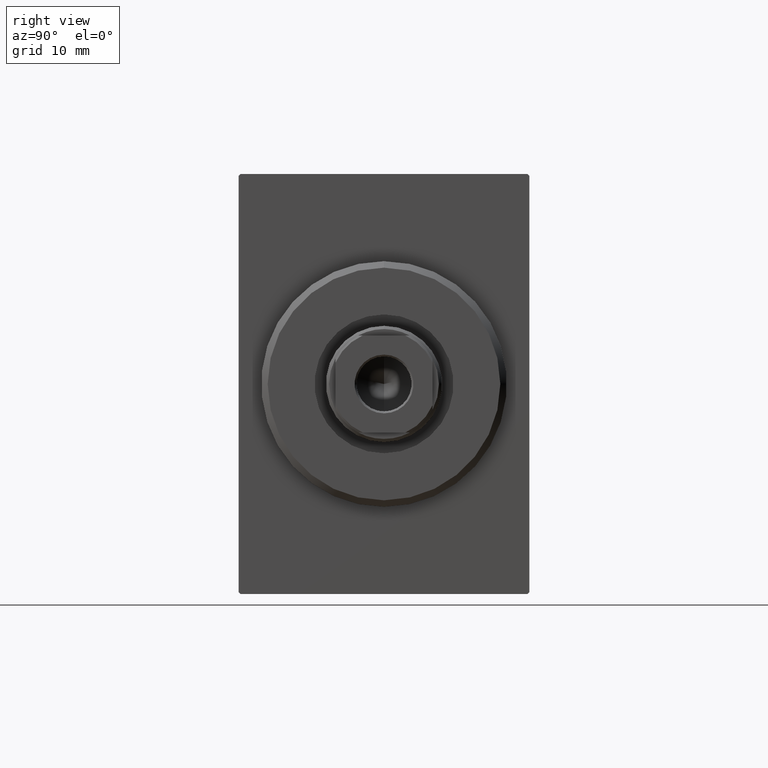
[diagram: clean part render]
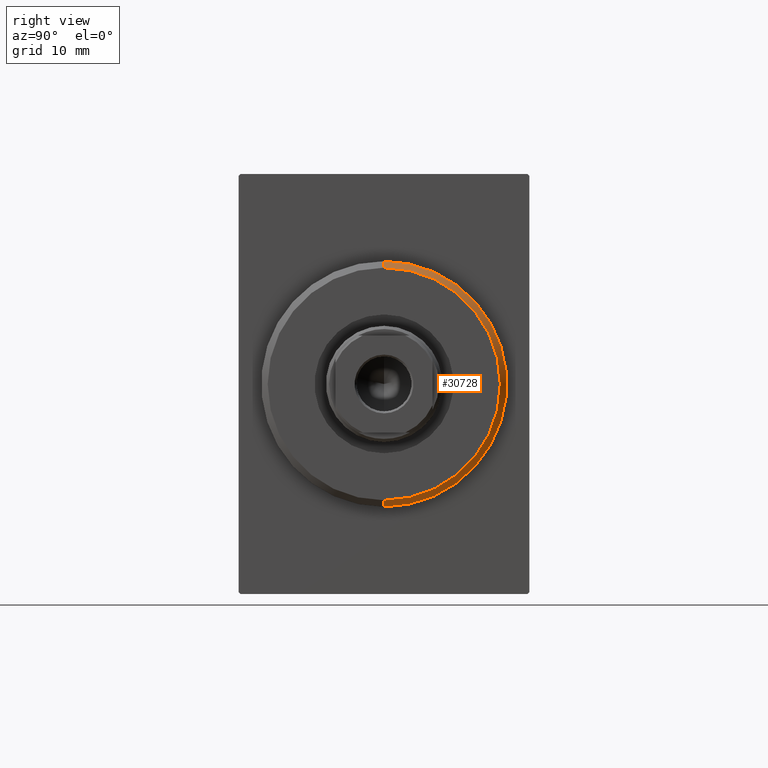
[diagram: same view with one face highlighted and labeled with its STEP entity id]
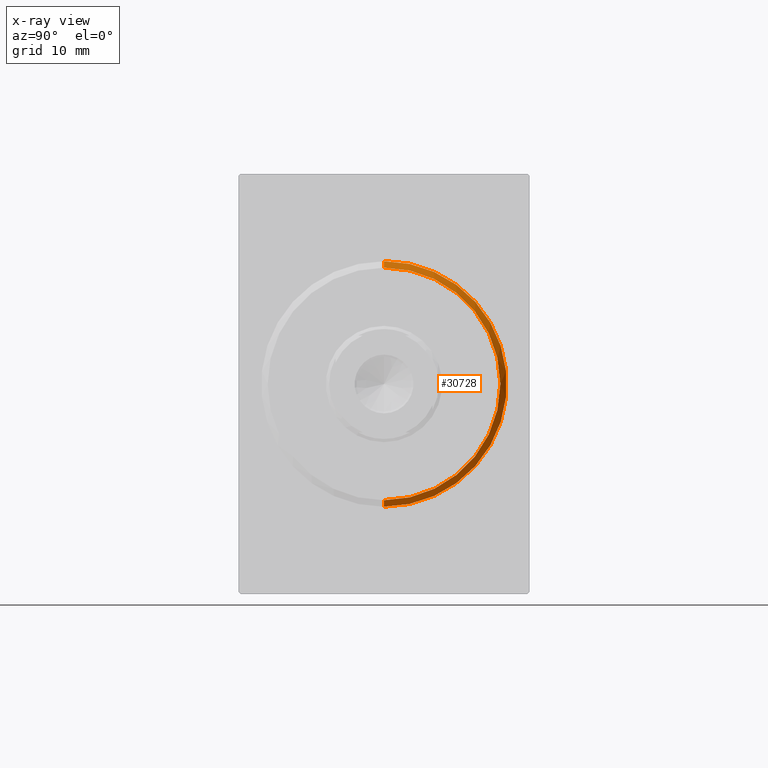
[diagram: x-ray of the same camera — body ghosted, the highlighted face saturated]
A machine part, right view. The second image highlights one B-rep face of the part: STEP entity #30728.
The next image is the same camera in x-ray: the body ghosted, the highlighted face saturated — about 0% of this face is hidden behind the body in this view.
In plain terms, the highlighted conical surface has half-angle 45 deg.
Its self-contained STEP definition (entity closure, byte-faithful):
#167 = CIRCLE ( 'NONE', #42473, 17.99999999999999645 ) ;
#4239 = ORIENTED_EDGE ( 'NONE', *, *, #17320, .T. ) ;
#5384 = AXIS2_PLACEMENT_3D ( 'NONE', #36017, #12755, #26011 ) ;
#6206 = ORIENTED_EDGE ( 'NONE', *, *, #15459, .F. ) ;
#7026 = CARTESIAN_POINT ( 'NONE',  ( 3.000000000000000000, 0.000000000000000000, 0.000000000000000000 ) ) ;
#9232 = VECTOR ( 'NONE', #42297, 1000.000000000000000 ) ;
#11369 = DIRECTION ( 'NONE',  ( -1.000000000000000000, 0.000000000000000000, 0.000000000000000000 ) ) ;
#11521 = CONICAL_SURFACE ( 'NONE', #17762, 17.99999999999999645, 0.7853981633974466137 ) ;
#12755 = DIRECTION ( 'NONE',  ( -1.000000000000000000, 0.000000000000000000, 0.000000000000000000 ) ) ;
#13935 = CARTESIAN_POINT ( 'NONE',  ( 3.000000000000000000, 2.204364238465235033E-15, -17.99999999999999645 ) ) ;
#14622 = FACE_OUTER_BOUND ( 'NONE', #32742, .T. ) ;
#15459 = EDGE_CURVE ( 'NONE', #24386, #24279, #167, .T. ) ;
#17197 = LINE ( 'NONE', #13935, #20309 ) ;
#17320 = EDGE_CURVE ( 'NONE', #24386, #18931, #17197, .T. ) ;
#17762 = AXIS2_PLACEMENT_3D ( 'NONE', #41137, #11369, #28945 ) ;
#17774 = LINE ( 'NONE', #34923, #9232 ) ;
#18159 = EDGE_CURVE ( 'NONE', #24279, #37268, #17774, .T. ) ;
#18931 = VERTEX_POINT ( 'NONE', #22579 ) ;
#19643 = DIRECTION ( 'NONE',  ( 1.000000000000000000, -0.000000000000000000, 0.000000000000000000 ) ) ;
#20288 = DIRECTION ( 'NONE',  ( 0.000000000000000000, 0.000000000000000000, -1.000000000000000000 ) ) ;
#20309 = VECTOR ( 'NONE', #33920, 1000.000000000000000 ) ;
#20329 = CARTESIAN_POINT ( 'NONE',  ( 1.999999999999992228, 0.000000000000000000, 19.00000000000000000 ) ) ;
#22579 = CARTESIAN_POINT ( 'NONE',  ( 1.999999999999992228, 2.326828918379970970E-15, -19.00000000000000000 ) ) ;
#24279 = VERTEX_POINT ( 'NONE', #28117 ) ;
#24386 = VERTEX_POINT ( 'NONE', #30454 ) ;
#24940 = ORIENTED_EDGE ( 'NONE', *, *, #35049, .F. ) ;
#25518 = CIRCLE ( 'NONE', #5384, 19.00000000000000000 ) ;
#26011 = DIRECTION ( 'NONE',  ( 0.000000000000000000, 0.000000000000000000, -1.000000000000000000 ) ) ;
#28117 = CARTESIAN_POINT ( 'NONE',  ( 3.000000000000000000, 0.000000000000000000, 17.99999999999999645 ) ) ;
#28945 = DIRECTION ( 'NONE',  ( 0.000000000000000000, 0.000000000000000000, 1.000000000000000000 ) ) ;
#30454 = CARTESIAN_POINT ( 'NONE',  ( 3.000000000000000000, 2.265596578422603002E-15, -17.99999999999999645 ) ) ;
#30728 = ADVANCED_FACE ( 'NONE', ( #14622 ), #11521, .T. ) ;
#32742 = EDGE_LOOP ( 'NONE', ( #6206, #4239, #24940, #40995 ) ) ;
#33920 = DIRECTION ( 'NONE',  ( -0.7071067811865487940, 8.659560562354918067E-17, -0.7071067811865463515 ) ) ;
#34923 = CARTESIAN_POINT ( 'NONE',  ( 3.000000000000000000, 0.000000000000000000, 17.99999999999999645 ) ) ;
#35049 = EDGE_CURVE ( 'NONE', #37268, #18931, #25518, .T. ) ;
#36017 = CARTESIAN_POINT ( 'NONE',  ( 1.999999999999992228, 0.000000000000000000, 0.000000000000000000 ) ) ;
#37268 = VERTEX_POINT ( 'NONE', #20329 ) ;
#40995 = ORIENTED_EDGE ( 'NONE', *, *, #18159, .F. ) ;
#41137 = CARTESIAN_POINT ( 'NONE',  ( 3.000000000000000000, 0.000000000000000000, 0.000000000000000000 ) ) ;
#42297 = DIRECTION ( 'NONE',  ( -0.7071067811865487940, 0.000000000000000000, 0.7071067811865463515 ) ) ;
#42473 = AXIS2_PLACEMENT_3D ( 'NONE', #7026, #19643, #20288 ) ;